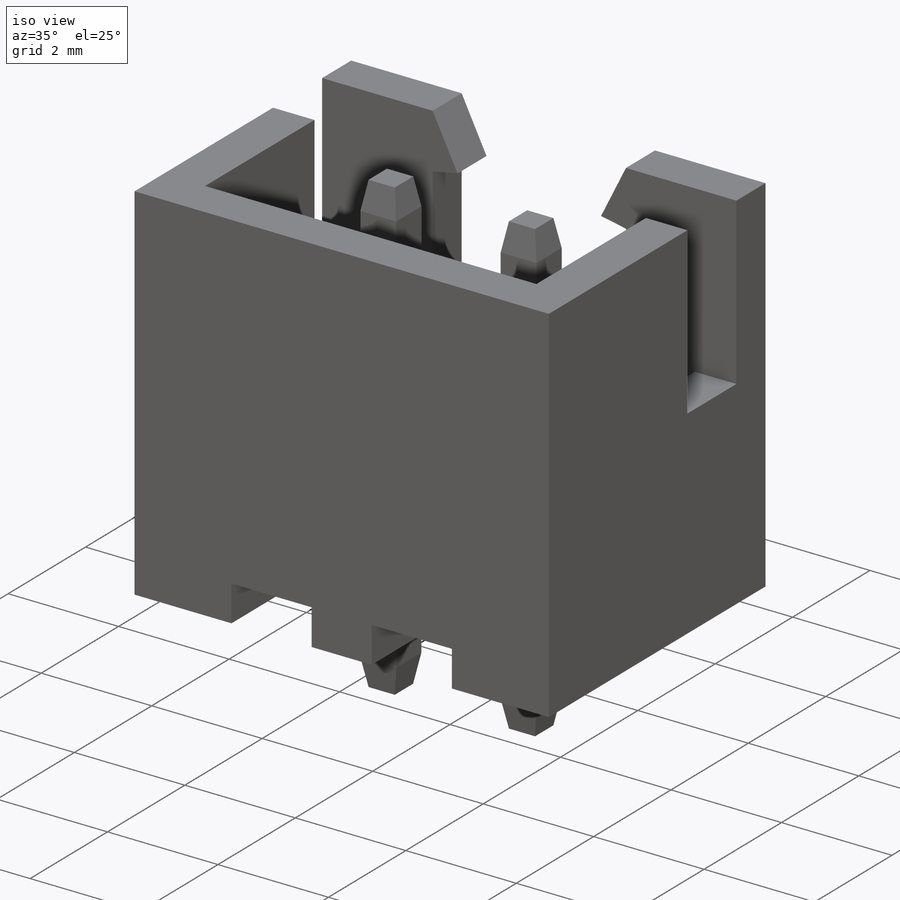
[diagram: iso view]
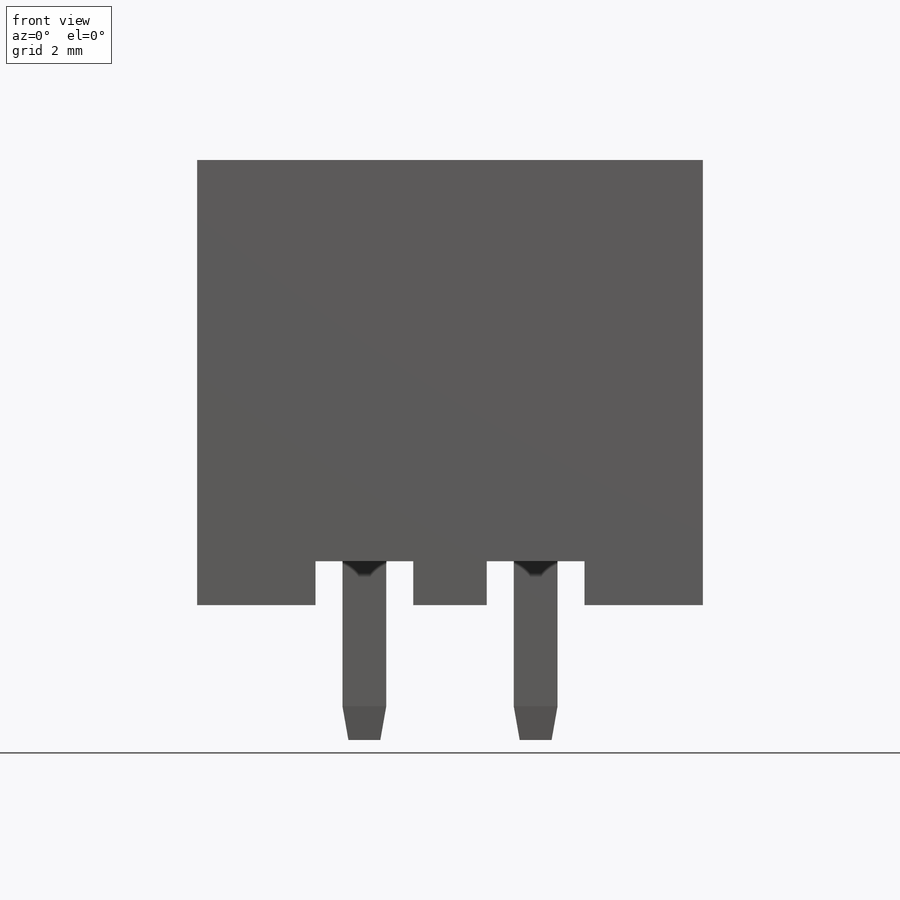
[diagram: front view]
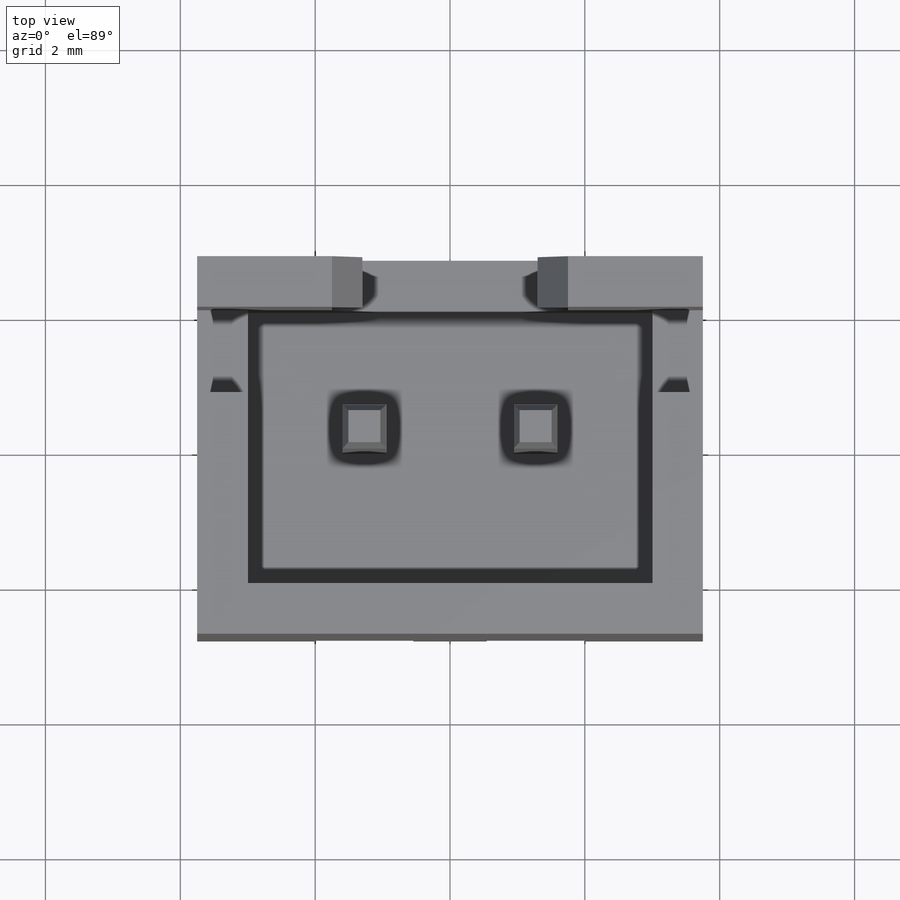
[diagram: top view]
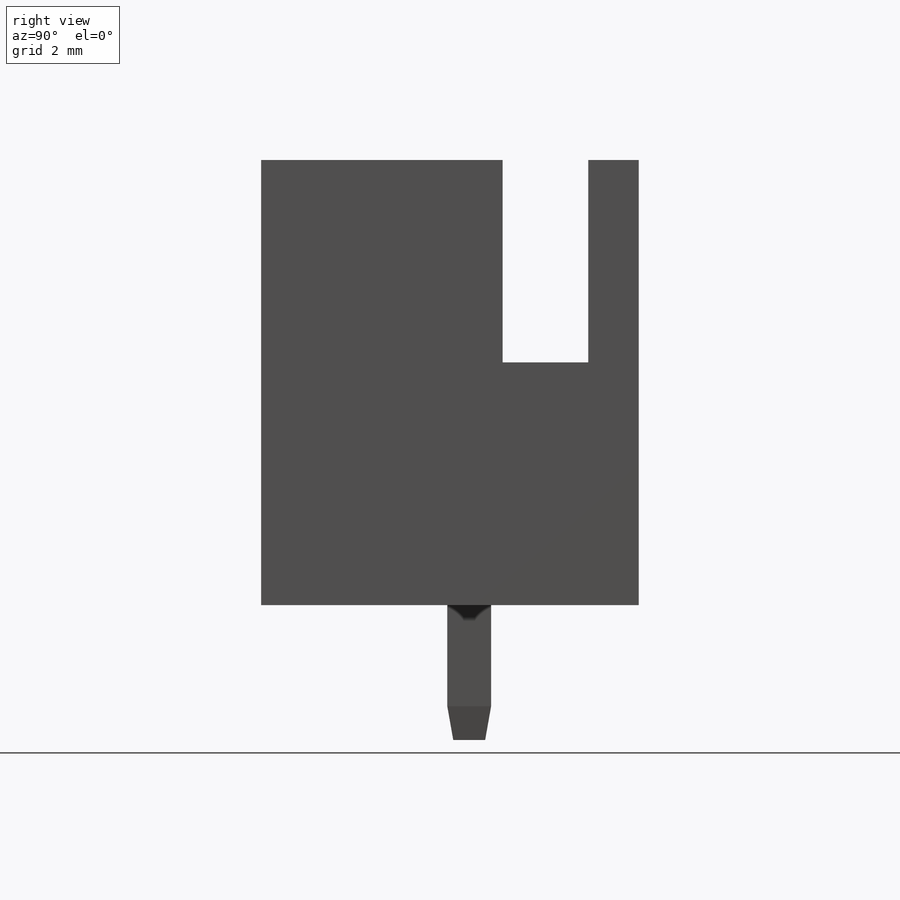
[diagram: right view]
SOLIDWORKS PART (.sldprt)
format: sldprt  version: not decoded by parser v0  size: 276,992 bytes
history: native  units: mm
features: sketch x7, cut_extrude x4, extrude x2, material x1, fillet x1, chamfer x1 (+12 scaffold rows collapsed)
feature tree (28):
  scaffold x12  (default folders/planes/origin — collapsed)
  material  "Material <not specified>"
  sketch  "Sketch1"  dims[D1=7.5mm D2=5.6mm D3=2.8mm D4=3.75mm]
  extrude  "Extrude1"  Depth=6.6mm
  sketch  "Sketch2"  dims[D1=0.65mm D2=1.45mm D3=1.45mm D4=2.54mm D5=1.27mm]
  cut_extrude  "Cut-Extrude1"  [1 undecoded]
  sketch  "Sketch3"  dims[D1=0.75mm D2=0.75mm D3=0.75mm D4=0.75mm]
  cut_extrude  "Cut-Extrude2"  Depth=0.7mm
  sketch  "Sketch5"  dims[D1=3.0mm D2=1.27mm]
  cut_extrude  "Cut-Extrude3"  [1 undecoded]
  sketch  "Sketch6"  dims[D1=3.5mm D2=1.75mm D3=3.5mm]
  cut_extrude  "Cut-Extrude4"  Depth=1.2mm
  fillet  "Fillet1"  Radius=0.5mm
  sketch  "Sketch7"  dims[D1=0.65mm D2=0.65mm D3=1.27mm]
  extrude  "Extrude2"  Depth=0.3mm
  chamfer  "Chamfer1"  Distance=0.5mm Angle=10deg
  sketch  "Component_Outline"
decode coverage: 12 of 15 modeling features carry decoded parameters
note: 2 parameter values undecoded
note: suppression state not decoded; provenance and decode notes live in map.json
